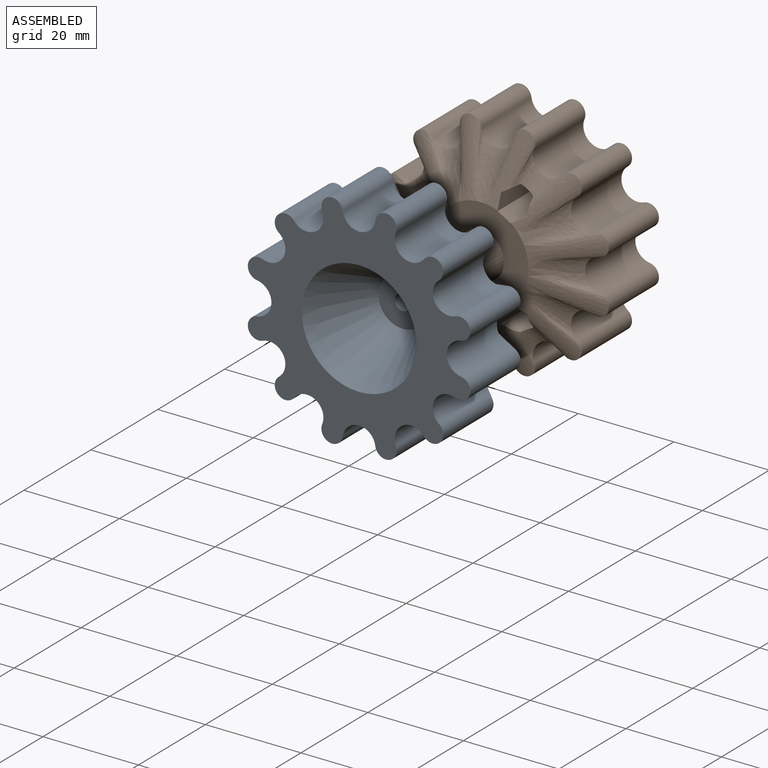
[diagram: assembled view]
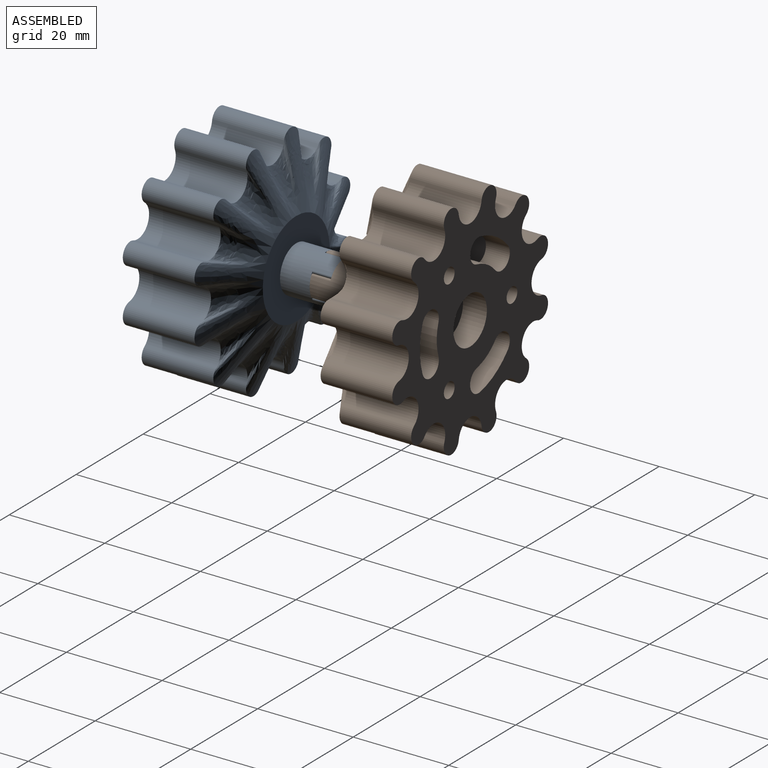
[diagram: assembled view, second angle]
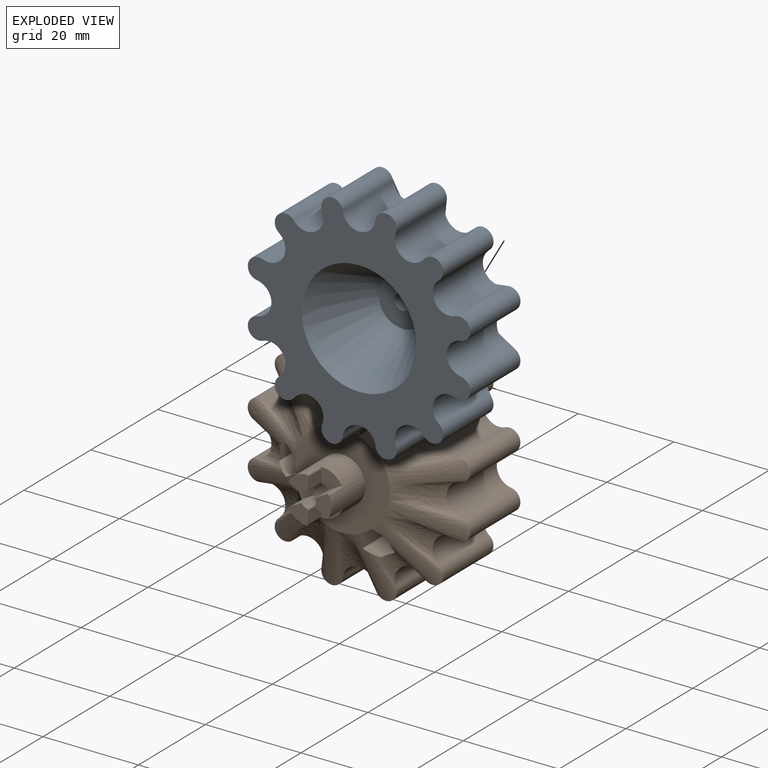
[diagram: exploded view]
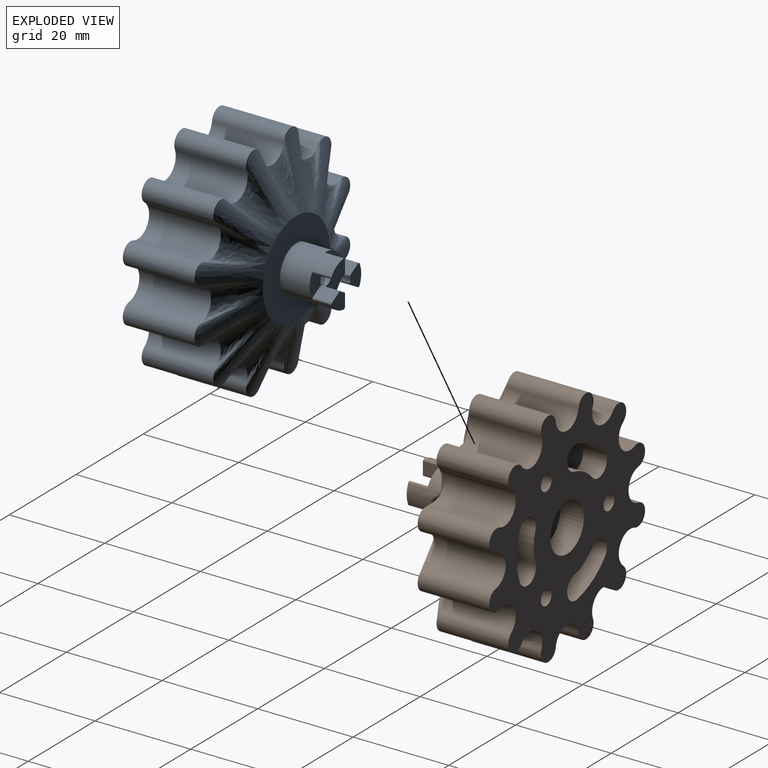
[diagram: exploded view, second angle]
ASSEMBLY  parts=2 mates=3
PART A: 55 faces, bbox 46.9x30.5x46.9 mm
  f0: cylinder r=1.62mm len=17.2mm, axis (0,1,0), area 147.4mm2, adj f1,f2,f3,f34,f37,f40,f41,f44
  f1: plane 4.54x3.33mm, normal (0,1,0), area 10.8mm2, adj f0,f31,f33,f39,f41,f42,f50,f51
  f2: plane 4.04x3.89mm, normal (0,1,0), area 10.8mm2, adj f0,f31,f36,f38,f43,f44,f47,f48
  f3: plane 4.04x3.89mm, normal (0,1,0), area 10.8mm2, adj f0,f31,f32,f35,f45,f46,f49,f52
  f4: cylinder r=3.43mm len=15mm, axis (0,1,0), area 148.3mm2, adj f5,f27,f28,f30
  f5: cylinder r=2.25mm len=15mm, axis (0,1,0), area 114.9mm2, adj f4,f6,f28,f30
  f6: cylinder r=3.43mm len=15mm, axis (0,1,0), area 148.3mm2, adj f5,f7,f28,f30
  f7: cylinder r=2.25mm len=15mm, axis (0,1,0), area 114.9mm2, adj f6,f8,f28,f30
  f8: cylinder r=3.43mm len=15mm, axis (0,1,0), area 148.3mm2, adj f7,f9,f28,f30
  f9: cylinder r=2.25mm len=15mm, axis (0,1,0), area 114.9mm2, adj f8,f10,f28,f30
  f10: cylinder r=3.43mm len=15mm, axis (0,1,0), area 148.3mm2, adj f9,f11,f28,f30
  f11: cylinder r=2.25mm len=15mm, axis (0,1,0), area 114.9mm2, adj f10,f12,f28,f30
  f12: cylinder r=3.43mm len=15mm, axis (0,1,0), area 148.3mm2, adj f11,f13,f28,f30
  f13: cylinder r=2.25mm len=15mm, axis (0,1,0), area 114.9mm2, adj f12,f14,f28,f30
  f14: cylinder r=3.43mm len=15mm, axis (0,1,0), area 148.3mm2, adj f13,f15,f28,f30
  f15: cylinder r=2.25mm len=15mm, axis (0,1,0), area 114.9mm2, adj f14,f16,f28,f30
  f16: cylinder r=3.43mm len=15mm, axis (0,1,0), area 148.3mm2, adj f15,f17,f28,f30
  f17: cylinder r=2.25mm len=15mm, axis (0,1,0), area 114.9mm2, adj f16,f18,f28,f30
  f18: cylinder r=3.43mm len=15mm, axis (0,1,0), area 148.3mm2, adj f17,f19,f28,f30
  f19: cylinder r=2.25mm len=15mm, axis (0,1,0), area 114.9mm2, adj f18,f20,f28,f30
  f20: cylinder r=3.43mm len=15mm, axis (0,1,0), area 148.3mm2, adj f19,f21,f28,f30
  f21: cylinder r=2.25mm len=15mm, axis (0,1,0), area 114.9mm2, adj f20,f22,f28,f30
  f22: cylinder r=3.43mm len=15mm, axis (0,1,0), area 148.3mm2, adj f21,f23,f28,f30
  f23: cylinder r=2.25mm len=15mm, axis (0,1,0), area 114.9mm2, adj f22,f24,f28,f30
  f24: cylinder r=3.43mm len=15mm, axis (0,1,0), area 148.3mm2, adj f23,f25,f28,f30
  f25: cylinder r=2.25mm len=15mm, axis (0,1,0), area 114.9mm2, adj f24,f26,f28,f30
  f26: cylinder r=3.43mm len=15mm, axis (0,1,0), area 148.3mm2, adj f25,f27,f28,f30
  f27: cylinder r=2.25mm len=15mm, axis (0,1,0), area 114.9mm2, adj f4,f26,f28,f30
  f28: plane 46.56x46.56mm, normal (0,-1,0), area 919.3mm2, adj f4,f5,f6,f7,f8,f9,f10,f11
  f29: plane 20.32x20.32mm, normal (0,1,0), area 240.3mm2, adj f30,f31
  f30: bspline ~46.43x46.02mm, area 1279.5mm2, adj f4,f5,f6,f7,f8,f9,f10,f11
  f31: cylinder r=4.85mm len=10.2mm, axis (0,-1,0), area 239.4mm2, adj f1,f2,f3,f29,f34,f37,f40,f42
  f32: plane 4x2.45mm, normal (-1,0,0), area 9.8mm2, adj f3,f34,f49,f52
  f33: plane 4x2.12mm, normal (0.5,0,0.87), area 9.8mm2, adj f1,f34,f50,f51
  f34: plane 4.84x4.33mm, normal (0,1,0), area 11.1mm2, adj f0,f31,f32,f33,f49,f50,f51,f52
  f35: plane 4x2.12mm, normal (0.5,0,-0.87), area 9.8mm2, adj f3,f37,f45,f46
  f36: plane 4x2.12mm, normal (0.5,0,0.87), area 9.8mm2, adj f2,f37,f47,f48
  f37: plane 5.59x3.63mm, normal (0,1,0), area 11.1mm2, adj f0,f31,f35,f36,f45,f46,f47,f48
  f38: plane 4x2.45mm, normal (-1,0,0), area 9.8mm2, adj f2,f40,f43,f44
  f39: plane 4x2.12mm, normal (0.5,0,-0.87), area 9.8mm2, adj f1,f40,f41,f42
  f40: plane 4.84x4.33mm, normal (0,1,0), area 11.1mm2, adj f0,f31,f38,f39,f41,f42,f43,f44
  f41: cylinder r=0.4mm len=4mm, axis (0,1,0), area 2.2mm2, adj f0,f1,f39,f40
  f42: cylinder r=0.4mm len=4mm, axis (0,-1,0), area 2.7mm2, adj f1,f31,f39,f40
  f43: cylinder r=0.4mm len=4mm, axis (0,-1,0), area 2.7mm2, adj f2,f31,f38,f40
  f44: cylinder r=0.4mm len=4mm, axis (0,1,0), area 2.2mm2, adj f0,f2,f38,f40
  f45: cylinder r=0.4mm len=4mm, axis (0,1,0), area 2.2mm2, adj f0,f3,f35,f37
  f46: cylinder r=0.4mm len=4mm, axis (0,-1,0), area 2.7mm2, adj f3,f31,f35,f37
  f47: cylinder r=0.4mm len=4mm, axis (0,-1,0), area 2.7mm2, adj f2,f31,f36,f37
  f48: cylinder r=0.4mm len=4mm, axis (0,1,0), area 2.2mm2, adj f0,f2,f36,f37
  f49: cylinder r=0.4mm len=4mm, axis (0,-1,0), area 2.7mm2, adj f3,f31,f32,f34
  f50: cylinder r=0.4mm len=4mm, axis (0,-1,0), area 2.7mm2, adj f1,f31,f33,f34
  f51: cylinder r=0.4mm len=4mm, axis (0,1,0), area 2.2mm2, adj f0,f1,f33,f34
  f52: cylinder r=0.4mm len=4mm, axis (0,1,0), area 2.2mm2, adj f0,f3,f32,f34
  f53: plane 10x10mm, normal (0,-1,0), area 70.2mm2, adj f0,f54
  f54: cone r=5mm half-angle=28.3deg, axis (0,-1,0), area 788.5mm2, adj f28,f53
PART B: 101 faces, bbox 48x31.6x48 mm
  f0: plane 11x2.88mm, normal (0.5,0,0.87), area 36.5mm2, adj f1,f5,f59,f99
  f1: plane 11x3.32mm, normal (1,0,0), area 36.5mm2, adj f0,f2,f59,f99
  f2: plane 11x2.88mm, normal (0.5,0,-0.87), area 36.5mm2, adj f1,f3,f59,f99
  f3: plane 11x2.88mm, normal (-0.5,0,-0.87), area 36.5mm2, adj f2,f4,f59,f99
  f4: plane 11x3.32mm, normal (-1,0,0), area 36.5mm2, adj f3,f5,f59,f99
  f5: plane 11x2.88mm, normal (-0.5,0,0.87), area 36.5mm2, adj f0,f4,f59,f99
  f6: plane 46.56x46.56mm, normal (0,1,0), area 1089.3mm2, adj f11,f12,f13,f14,f15,f16,f17,f18
  f7: cylinder r=1.62mm len=14.2mm, axis (0,-1,0), area 116.8mm2, adj f8,f9,f10,f40,f43,f46,f47,f50
  f8: plane 4.04x3.89mm, normal (0,-1,0), area 10.8mm2, adj f7,f37,f39,f45,f47,f48,f56,f57
  f9: plane 4.04x3.89mm, normal (0,-1,0), area 10.8mm2, adj f7,f37,f42,f44,f49,f50,f53,f54
  f10: plane 4.54x3.33mm, normal (0,-1,0), area 10.8mm2, adj f7,f37,f38,f41,f51,f52,f55,f58
  f11: cylinder r=3.43mm len=15mm, axis (0,-1,0), area 148.3mm2, adj f6,f12,f34,f36
  f12: cylinder r=2.25mm len=15mm, axis (0,-1,0), area 114.9mm2, adj f6,f11,f13,f36
  f13: cylinder r=3.43mm len=15mm, axis (0,-1,0), area 148.3mm2, adj f6,f12,f14,f36
  f14: cylinder r=2.25mm len=15mm, axis (0,-1,0), area 114.9mm2, adj f6,f13,f15,f36
  f15: cylinder r=3.43mm len=15mm, axis (0,-1,0), area 148.3mm2, adj f6,f14,f16,f36
  f16: cylinder r=2.25mm len=15mm, axis (0,-1,0), area 114.9mm2, adj f6,f15,f17,f36
  f17: cylinder r=3.43mm len=15mm, axis (0,-1,0), area 148.3mm2, adj f6,f16,f18,f36
  f18: cylinder r=2.25mm len=15mm, axis (0,-1,0), area 114.9mm2, adj f6,f17,f19,f36
  f19: cylinder r=3.43mm len=15mm, axis (0,-1,0), area 148.3mm2, adj f6,f18,f20,f36
  f20: cylinder r=2.25mm len=15mm, axis (0,-1,0), area 114.9mm2, adj f6,f19,f21,f36
  f21: cylinder r=3.43mm len=15mm, axis (0,-1,0), area 148.3mm2, adj f6,f20,f22,f36
  f22: cylinder r=2.25mm len=15mm, axis (0,-1,0), area 114.9mm2, adj f6,f21,f23,f36
  f23: cylinder r=3.43mm len=15mm, axis (0,-1,0), area 148.3mm2, adj f6,f22,f24,f36
  f24: cylinder r=2.25mm len=15mm, axis (0,-1,0), area 114.9mm2, adj f6,f23,f25,f36
  f25: cylinder r=3.43mm len=15mm, axis (0,-1,0), area 148.3mm2, adj f6,f24,f26,f36
  f26: cylinder r=2.25mm len=15mm, axis (0,-1,0), area 114.9mm2, adj f6,f25,f27,f36
  f27: cylinder r=3.43mm len=15mm, axis (0,-1,0), area 148.3mm2, adj f6,f26,f28,f36
  f28: cylinder r=2.25mm len=15mm, axis (0,-1,0), area 114.9mm2, adj f6,f27,f29,f36
  f29: cylinder r=3.43mm len=15mm, axis (0,-1,0), area 148.3mm2, adj f6,f28,f30,f36
  f30: cylinder r=2.25mm len=15mm, axis (0,-1,0), area 114.9mm2, adj f6,f29,f31,f36
  f31: cylinder r=3.43mm len=15mm, axis (0,-1,0), area 148.3mm2, adj f6,f30,f32,f36
  f32: cylinder r=2.25mm len=15mm, axis (0,-1,0), area 114.9mm2, adj f6,f31,f33,f36
  f33: cylinder r=3.43mm len=15mm, axis (0,-1,0), area 148.3mm2, adj f6,f32,f34,f36
  f34: cylinder r=2.25mm len=15mm, axis (0,-1,0), area 114.9mm2, adj f6,f11,f33,f36
  f35: plane 20.33x20.19mm, normal (0,-1,0), area 238.3mm2, adj f36,f37,f79,f80,f81,f89,f90,f91
  f36: bspline ~46.38x46.25mm, area 1189.6mm2, adj f11,f12,f13,f14,f15,f16,f17,f18
  f37: cylinder r=4.85mm len=10.2mm, axis (0,1,0), area 239.4mm2, adj f8,f9,f10,f35,f40,f43,f46,f48
  f38: plane 4x2.12mm, normal (-0.5,0,0.87), area 9.8mm2, adj f10,f40,f55,f58
  f39: plane 4x2.45mm, normal (1,0,0), area 9.8mm2, adj f8,f40,f56,f57
  f40: plane 4.84x4.33mm, normal (0,-1,0), area 11.1mm2, adj f7,f37,f38,f39,f55,f56,f57,f58
  f41: plane 4x2.12mm, normal (-0.5,0,-0.87), area 9.8mm2, adj f10,f43,f51,f52
  f42: plane 4x2.45mm, normal (1,0,0), area 9.8mm2, adj f9,f43,f53,f54
  f43: plane 4.84x4.33mm, normal (0,-1,0), area 11.1mm2, adj f7,f37,f41,f42,f51,f52,f53,f54
  f44: plane 4x2.12mm, normal (-0.5,0,0.87), area 9.8mm2, adj f9,f46,f49,f50
  f45: plane 4x2.12mm, normal (-0.5,0,-0.87), area 9.8mm2, adj f8,f46,f47,f48
  f46: plane 5.59x3.63mm, normal (0,-1,0), area 11.1mm2, adj f7,f37,f44,f45,f47,f48,f49,f50
  f47: cylinder r=0.4mm len=4mm, axis (0,-1,0), area 2.2mm2, adj f7,f8,f45,f46
  f48: cylinder r=0.4mm len=4mm, axis (0,1,0), area 2.7mm2, adj f8,f37,f45,f46
  f49: cylinder r=0.4mm len=4mm, axis (0,1,0), area 2.7mm2, adj f9,f37,f44,f46
  f50: cylinder r=0.4mm len=4mm, axis (0,-1,0), area 2.2mm2, adj f7,f9,f44,f46
  f51: cylinder r=0.4mm len=4mm, axis (0,-1,0), area 2.2mm2, adj f7,f10,f41,f43
  f52: cylinder r=0.4mm len=4mm, axis (0,1,0), area 2.7mm2, adj f10,f37,f41,f43
  f53: cylinder r=0.4mm len=4mm, axis (0,1,0), area 2.7mm2, adj f9,f37,f42,f43
  f54: cylinder r=0.4mm len=4mm, axis (0,-1,0), area 2.2mm2, adj f7,f9,f42,f43
  f55: cylinder r=0.4mm len=4mm, axis (0,1,0), area 2.7mm2, adj f10,f37,f38,f40
  f56: cylinder r=0.4mm len=4mm, axis (0,1,0), area 2.7mm2, adj f8,f37,f39,f40
  f57: cylinder r=0.4mm len=4mm, axis (0,-1,0), area 2.2mm2, adj f7,f8,f39,f40
  f58: cylinder r=0.4mm len=4mm, axis (0,-1,0), area 2.2mm2, adj f7,f10,f38,f40
  f59: plane 6.64x5.75mm, normal (0,1,0), area 20.3mm2, adj f0,f1,f2,f3,f4,f5,f7
  f60: cylinder r=2.5mm len=5mm, axis (0,1,0), area 39.3mm2, adj f6,f61,f63,f64
  f61: cylinder r=15mm len=8.23mm, axis (0,1,0), area 48.3mm2, adj f6,f60,f62,f64
  f62: cylinder r=2.5mm len=5mm, axis (0,1,0), area 39.3mm2, adj f6,f61,f63,f64
  f63: cylinder r=10mm len=5.49mm, axis (0,1,0), area 32.2mm2, adj f6,f60,f62,f64
  f64: plane 11.86x8.96mm, normal (0,1,0), area 59.9mm2, adj f60,f61,f62,f63
  f65: cylinder r=10mm len=5.49mm, axis (0,1,0), area 32.2mm2, adj f6,f66,f68,f69
  f66: cylinder r=2.5mm len=5mm, axis (0,1,0), area 39.3mm2, adj f6,f65,f67,f69
  f67: cylinder r=15mm len=8.23mm, axis (0,1,0), area 48.3mm2, adj f6,f66,f68,f69
  f68: cylinder r=2.5mm len=5mm, axis (0,1,0), area 39.3mm2, adj f6,f65,f67,f69
  f69: plane 11.86x8.96mm, normal (0,1,0), area 59.9mm2, adj f65,f66,f67,f68
  f70: cylinder r=2.5mm len=5mm, axis (0,1,0), area 39.3mm2, adj f6,f71,f73,f74
  f71: cylinder r=15mm len=9.5mm, axis (0,1,0), area 48.3mm2, adj f6,f70,f72,f74
  f72: cylinder r=2.5mm len=5mm, axis (0,1,0), area 39.3mm2, adj f6,f71,f73,f74
  f73: cylinder r=10mm len=6.33mm, axis (0,1,0), area 32.2mm2, adj f6,f70,f72,f74
  f74: plane 12.92x5.64mm, normal (0,1,0), area 59.9mm2, adj f70,f71,f72,f73
  f75: cylinder r=1.6mm len=5mm, axis (0,1,0), area 50.3mm2, adj f6,f92
  f76: cylinder r=1.6mm len=5mm, axis (0,1,0), area 50.3mm2, adj f6,f85
  f77: cylinder r=1.6mm len=5mm, axis (0,1,0), area 50.3mm2, adj f6,f78
  f78: plane 6.35x5.5mm, normal (0,-1,0), area 18.2mm2, adj f77,f79,f80,f81,f82,f83,f84
  f79: plane 15.13x2.88mm, normal (-0.5,0,0.87), area 46.1mm2, adj f35,f36,f78,f80,f84
  f80: plane 15x2.75mm, normal (0.5,0,0.87), area 47.6mm2, adj f35,f78,f79,f81
  f81: plane 15.2x3.37mm, normal (1,0,0), area 46mm2, adj f35,f36,f78,f80,f82
  f82: plane 15.16x3.95mm, normal (0.5,0,-0.87), area 41.9mm2, adj f36,f78,f81,f83
  f83: plane 13.38x3.92mm, normal (-0.5,0,-0.87), area 37.9mm2, adj f36,f78,f82,f84
  f84: plane 15.37x4.58mm, normal (-1,0,0), area 42.3mm2, adj f36,f78,f79,f83
  f85: plane 6.35x5.5mm, normal (0,-1,0), area 18.2mm2, adj f76,f86,f87,f88,f89,f90,f91
  f86: plane 15.16x4.38mm, normal (-1,0,0), area 41.9mm2, adj f36,f85,f87,f91
  f87: plane 13.38x3.92mm, normal (-0.5,0,0.87), area 37.9mm2, adj f36,f85,f86,f88
  f88: plane 15.31x4.09mm, normal (0.5,0,0.87), area 42.3mm2, adj f36,f85,f87,f89
  f89: plane 15.13x3.31mm, normal (1,0,0), area 46.1mm2, adj f35,f36,f85,f88,f90
  f90: plane 15x2.75mm, normal (0.5,0,-0.87), area 47.6mm2, adj f35,f85,f89,f91
  f91: plane 15.2x2.95mm, normal (-0.5,0,-0.87), area 46mm2, adj f35,f36,f85,f86,f90
  f92: plane 6.35x5.5mm, normal (0,-1,0), area 18.2mm2, adj f75,f93,f94,f95,f96,f97,f98
  f93: plane 15.16x3.95mm, normal (0.5,0,0.87), area 41.9mm2, adj f36,f92,f94,f98
  f94: plane 13.38x4.35mm, normal (1,0,0), area 37.9mm2, adj f36,f92,f93,f95
  f95: plane 15.31x4.09mm, normal (0.5,0,-0.87), area 42.3mm2, adj f36,f92,f94,f96
  f96: plane 15.13x2.88mm, normal (-0.5,0,-0.87), area 46.1mm2, adj f35,f36,f92,f95,f97
  f97: plane 15x3.18mm, normal (-1,0,0), area 47.6mm2, adj f35,f92,f96,f98
  f98: plane 15.2x2.95mm, normal (-0.5,0,0.87), area 46mm2, adj f35,f36,f92,f93,f97
  f99: plane 10x10mm, normal (0,1,0), area 49.9mm2, adj f0,f1,f2,f3,f4,f5,f100
  f100: cylinder r=5mm len=10mm, axis (0,1,0), area 157.1mm2, adj f6,f99
PLACE A t=(1.54,-29.84,20.06)mm
PLACE B t=(1.54,-83.84,20.06)mm
MATE planar B.f45 <-> A.f33  axis (-0.5,0,-0.87) through (-1.24,-16.64,21.67)mm
MATE planar B.f8 <-> A.f34  axis (0,-1,0) through (-0.13,-18.64,22.96)mm
MATE cylindrical B.f37 <-> A.f31  axis (0,1,0) through (1.54,-13.54,20.06)mm
